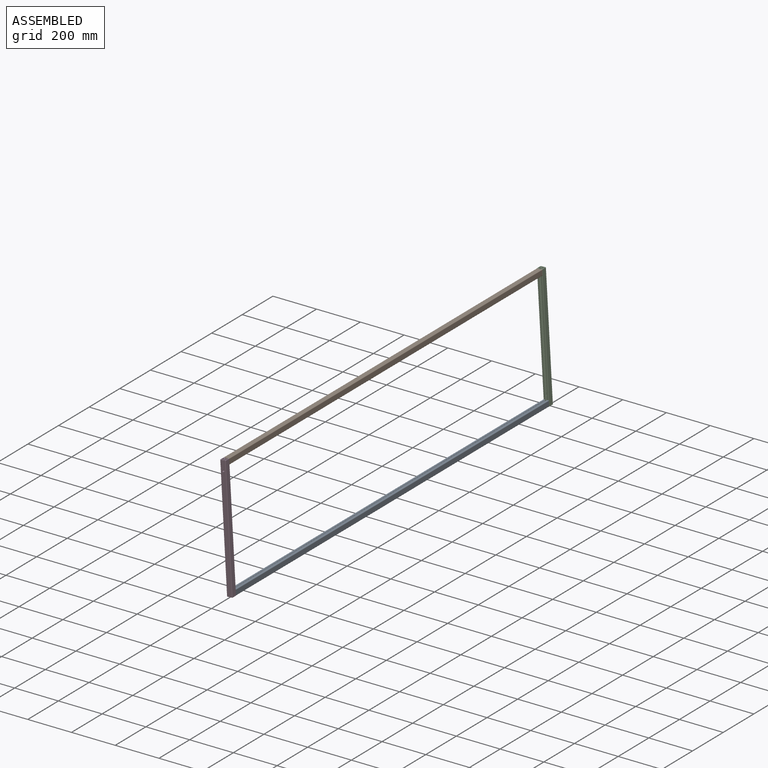
[diagram: assembled view]
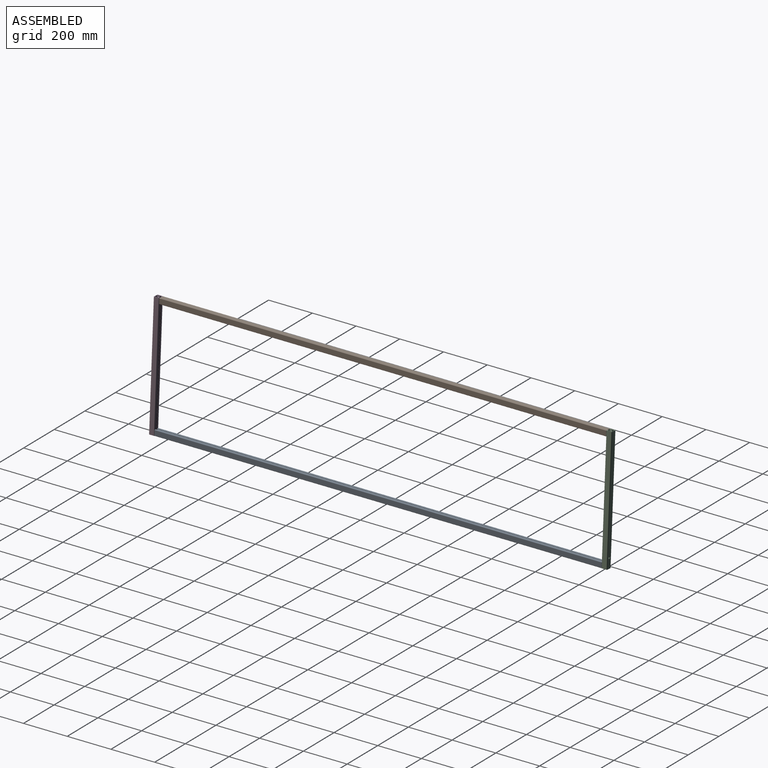
[diagram: assembled view, second angle]
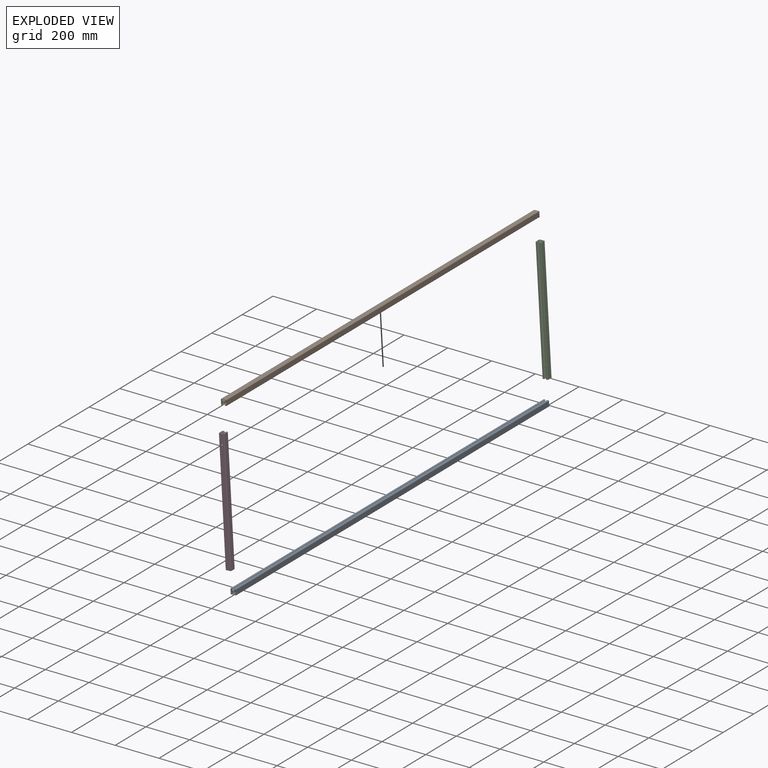
[diagram: exploded view]
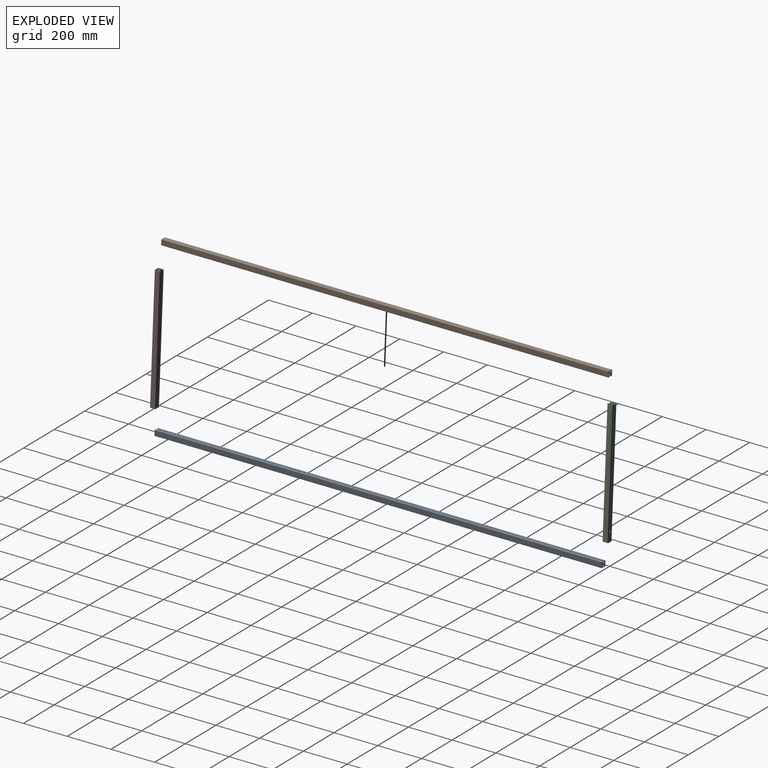
[diagram: exploded view, second angle]
ASSEMBLY  parts=4 mates=3
PART A: 65 faces, bbox 25x2044.7x25 mm
  f0: plane 2044.7x3.11mm, normal (0,0,-1), area 6359mm2, adj f1,f62,f63,f64
  f1: cylinder r=3.17mm len=2044.7mm, axis (0,1,0), area 5086.7mm2, adj f0,f2,f63,f64
  f2: plane 2044.7x3.34mm, normal (-0.71,0,-0.71), area 9646.1mm2, adj f1,f3,f63,f64
  f3: cylinder r=1.01mm len=2044.7mm, axis (0,1,0), area 4866.8mm2, adj f2,f4,f63,f64
  f4: plane 2044.7x2.1mm, normal (0,0,1), area 4293.9mm2, adj f3,f5,f63,f64
  f5: plane 2044.7x8.64mm, normal (0,0,1), area 17666.2mm2, adj f4,f6,f63,f64
  f6: plane 2044.7x2.1mm, normal (0,0,1), area 4293.9mm2, adj f5,f7,f63,f64
  f7: cylinder r=1.01mm len=2044.7mm, axis (0,1,0), area 4866.8mm2, adj f6,f8,f63,f64
  f8: plane 2044.7x3.34mm, normal (0.71,0,-0.71), area 9646.1mm2, adj f7,f62,f63,f64
  f9: plane 2044.7x1.56mm, normal (1,0,0), area 3179.6mm2, adj f10,f59,f63,f64
  f10: plane 2044.7x1.56mm, normal (1,0,0), area 3179.6mm2, adj f9,f11,f63,f64
  f11: cylinder r=3.17mm len=2044.7mm, axis (0,1,0), area 5086.7mm2, adj f10,f12,f63,f64
  f12: plane 2044.7x3.34mm, normal (0.71,0,-0.71), area 9646.1mm2, adj f11,f13,f63,f64
  f13: cylinder r=1.01mm len=2044.7mm, axis (0,1,0), area 4866.8mm2, adj f12,f14,f63,f64
  f14: plane 2044.7x2.1mm, normal (-1,0,0), area 4293.9mm2, adj f13,f15,f63,f64
  f15: plane 2044.7x8.64mm, normal (-1,0,0), area 17666.5mm2, adj f14,f16,f63,f64
  f16: plane 2044.7x2.1mm, normal (-1,0,0), area 4293.9mm2, adj f15,f17,f63,f64
  f17: cylinder r=1.01mm len=2044.7mm, axis (0,1,0), area 4866.8mm2, adj f16,f18,f63,f64
  f18: plane 2044.7x3.34mm, normal (0.71,0,0.71), area 9646.1mm2, adj f17,f59,f63,f64
  f19: cylinder r=1.01mm len=2044.7mm, axis (0,1,0), area 4866.8mm2, adj f20,f60,f63,f64
  f20: plane 2044.7x2.1mm, normal (0,0,-1), area 4293.9mm2, adj f19,f21,f63,f64
  f21: cylinder r=1.07mm len=2044.7mm, axis (0,1,0), area 6871.6mm2, adj f20,f22,f63,f64
  f22: plane 2044.7x6.22mm, normal (0,0,1), area 12712mm2, adj f21,f23,f63,f64
  f23: cylinder r=1.96mm len=2044.7mm, axis (0,1,0), area 3149.2mm2, adj f22,f24,f63,f64
  f24: cylinder r=1.96mm len=2044.7mm, axis (0,1,0), area 3149.2mm2, adj f23,f25,f63,f64
  f25: plane 2044.7x6.22mm, normal (-1,0,0), area 12712mm2, adj f24,f26,f63,f64
  f26: plane 2044.7x8.64mm, normal (-1,0,0), area 17666.5mm2, adj f25,f27,f63,f64
  f27: plane 2044.7x6.22mm, normal (-1,0,0), area 12712mm2, adj f26,f28,f63,f64
  f28: cylinder r=1.96mm len=2044.7mm, axis (0,1,0), area 3149.2mm2, adj f27,f29,f63,f64
  f29: cylinder r=1.96mm len=2044.7mm, axis (0,1,0), area 3149.2mm2, adj f28,f30,f63,f64
  f30: plane 2044.7x6.22mm, normal (0,0,-1), area 12712mm2, adj f29,f31,f63,f64
  f31: plane 2044.7x8.64mm, normal (0,0,-1), area 17666.2mm2, adj f30,f32,f63,f64
  f32: plane 2044.7x6.22mm, normal (0,0,-1), area 12712mm2, adj f31,f33,f63,f64
  f33: cylinder r=1.96mm len=2044.7mm, axis (0,1,0), area 3149.2mm2, adj f32,f34,f63,f64
  f34: cylinder r=1.96mm len=2044.7mm, axis (0,1,0), area 3149.2mm2, adj f33,f35,f63,f64
  f35: plane 2044.7x6.22mm, normal (1,0,0), area 12712mm2, adj f34,f36,f63,f64
  f36: plane 2044.7x8.64mm, normal (1,0,0), area 17666.5mm2, adj f35,f37,f63,f64
  f37: plane 2044.7x6.22mm, normal (1,0,0), area 12712mm2, adj f36,f38,f63,f64
  f38: cylinder r=1.96mm len=2044.7mm, axis (0,1,0), area 3149.2mm2, adj f37,f39,f63,f64
  f39: cylinder r=1.96mm len=2044.7mm, axis (0,1,0), area 3149.2mm2, adj f38,f40,f63,f64
  f40: plane 2044.7x6.22mm, normal (0,0,1), area 12712mm2, adj f39,f41,f63,f64
  f41: cylinder r=1.07mm len=2044.7mm, axis (0,1,0), area 6868.6mm2, adj f40,f42,f63,f64
  f42: plane 2044.7x2.1mm, normal (0,0,-1), area 4293.9mm2, adj f41,f43,f63,f64
  f43: cylinder r=1.01mm len=2044.7mm, axis (0,1,0), area 4866.8mm2, adj f42,f44,f63,f64
  f44: plane 2044.7x3.34mm, normal (-0.71,0,0.71), area 9646.1mm2, adj f43,f45,f63,f64
  f45: cylinder r=3.17mm len=2044.7mm, axis (0,1,0), area 5086.7mm2, adj f44,f46,f63,f64
  f46: plane 2044.7x3.11mm, normal (0,0,1), area 6359mm2, adj f45,f47,f63,f64
  f47: cylinder r=3.17mm len=2044.7mm, axis (0,1,0), area 5086.7mm2, adj f46,f60,f63,f64
  f48: plane 2044.7x1.56mm, normal (-1,0,0), area 3179.6mm2, adj f49,f61,f63,f64
  f49: plane 2044.7x1.56mm, normal (-1,0,0), area 3179.6mm2, adj f48,f50,f63,f64
  f50: cylinder r=3.17mm len=2044.7mm, axis (0,1,0), area 5086.7mm2, adj f49,f51,f63,f64
  f51: plane 2044.7x3.34mm, normal (-0.71,0,0.71), area 9646.1mm2, adj f50,f52,f63,f64
  f52: cylinder r=1.01mm len=2044.7mm, axis (0,1,0), area 4866.8mm2, adj f51,f53,f63,f64
  f53: plane 2044.7x2.1mm, normal (1,0,0), area 4293.9mm2, adj f52,f54,f63,f64
  f54: plane 2044.7x8.64mm, normal (1,0,0), area 17666.5mm2, adj f53,f55,f63,f64
  f55: plane 2044.7x2.1mm, normal (1,0,0), area 4293.9mm2, adj f54,f56,f63,f64
  f56: cylinder r=1.01mm len=2044.7mm, axis (0,1,0), area 4866.8mm2, adj f55,f57,f63,f64
  f57: plane 2044.7x3.34mm, normal (-0.71,0,-0.71), area 9646.1mm2, adj f56,f61,f63,f64
  f58: cylinder r=2.5mm len=2044.7mm, axis (0,1,0), area 32118.1mm2, adj f63,f64
  f59: cylinder r=3.17mm len=2044.7mm, axis (0,1,0), area 5086.7mm2, adj f9,f18,f63,f64
  f60: plane 2044.7x3.34mm, normal (0.71,0,0.71), area 9646.1mm2, adj f19,f47,f63,f64
  f61: cylinder r=3.17mm len=2044.7mm, axis (0,1,0), area 5086.7mm2, adj f48,f57,f63,f64
  f62: cylinder r=3.17mm len=2044.7mm, axis (0,1,0), area 5086.7mm2, adj f0,f8,f63,f64
  f63: plane 25x25mm, normal (0,-1,0), area 318mm2, adj f0,f1,f2,f3,f4,f5,f6,f7
  f64: plane 25x25mm, normal (0,1,0), area 318mm2, adj f0,f1,f2,f3,f4,f5,f6,f7
PART B: same geometry as A
PART C: 92 faces, bbox 25x558.8x25 mm
  f0: cylinder r=3.17mm len=38.59mm, axis (0,1,0), area 94.8mm2, adj f1,f2,f80,f91
  f1: plane 37.61x3.13mm, normal (0,0,-1), area 116.6mm2, adj f0,f4,f80,f91
  f2: plane 558.81x3.35mm, normal (-0.71,0,-0.71), area 2601.1mm2, adj f0,f23,f24,f80,f81,f90,f91
  f3: plane 558.81x3.35mm, normal (0.71,0,-0.71), area 2601.1mm2, adj f4,f22,f28,f80,f81,f90,f91
  f4: cylinder r=3.17mm len=38.59mm, axis (0,1,0), area 94.8mm2, adj f1,f3,f80,f91
  f5: cylinder r=6.6mm len=13.21mm, axis (0,0,-1), area 125.8mm2, adj f10,f11,f12,f15,f16,f17,f18,f19
  f6: plane 507.51x3.12mm, normal (0,0,-1), area 1577.9mm2, adj f22,f23,f81,f90
  f7: plane 512.39x2.11mm, normal (0,0,1), area 1072mm2, adj f8,f24,f81,f90
  f8: plane 509.22x8.65mm, normal (0,0,1), area 4390.3mm2, adj f7,f9,f81,f90
  f9: plane 512.39x2.11mm, normal (0,0,1), area 1072mm2, adj f8,f28,f81,f90
  f10: plane 39.5x1.56mm, normal (1,0,0), area 61.4mm2, adj f5,f30,f77,f80
  f11: plane 509.4x1.56mm, normal (1,0,0), area 792.1mm2, adj f5,f29,f31,f81
  f12: cylinder r=3.17mm len=40.51mm, axis (0,1,0), area 99.5mm2, adj f5,f30,f32,f80
  f13: plane 558.8x13.26mm, normal (0,0,-1), area 4810.4mm2, adj f14,f50,f80,f81,f85
  f14: plane 558.8x6.25mm, normal (0,0,-1), area 3458.3mm2, adj f13,f51,f80,f81
  f15: plane 507.93x3.11mm, normal (0,0,1), area 1579.3mm2, adj f5,f63,f65,f81
  f16: plane 509.4x1.56mm, normal (-1,0,0), area 792.1mm2, adj f5,f21,f67,f81
  f17: plane 39.5x1.56mm, normal (-1,0,0), area 61.4mm2, adj f5,f18,f66,f80
  f18: cylinder r=3.17mm len=39.79mm, axis (0,1,0), area 98.1mm2, adj f5,f17,f69,f80,f84,f86,f87
  f19: cylinder r=2.5mm len=37.85mm, axis (0,1,0), area 594.5mm2, adj f5,f80
  f20: cylinder r=3.17mm len=509.69mm, axis (0,1,0), area 1267.2mm2, adj f5,f29,f38,f81,f87,f89
  f21: cylinder r=3.17mm len=510.41mm, axis (0,1,0), area 1268.5mm2, adj f5,f16,f75,f81
  f22: cylinder r=3.17mm len=508.49mm, axis (0,1,0), area 1263.8mm2, adj f3,f6,f81,f90
  f23: cylinder r=3.17mm len=508.49mm, axis (0,1,0), area 1263.8mm2, adj f2,f6,f81,f90
  f24: cylinder r=1.01mm len=558.8mm, axis (0,1,0), area 1329.3mm2, adj f2,f7,f25,f80,f81,f90
  f25: plane 42.49x2.11mm, normal (0,0,1), area 85.2mm2, adj f24,f26,f80,f90
  f26: plane 39.33x8.66mm, normal (0,0,1), area 330.3mm2, adj f25,f27,f80,f90,f91
  f27: plane 42.49x2.11mm, normal (0,0,1), area 85.2mm2, adj f26,f28,f80,f90
  f28: cylinder r=1.01mm len=558.8mm, axis (0,1,0), area 1329.3mm2, adj f3,f9,f27,f80,f81,f90
  f29: plane 509.4x1.56mm, normal (1,0,0), area 792.1mm2, adj f5,f11,f20,f81
  f30: plane 39.5x1.56mm, normal (1,0,0), area 61.4mm2, adj f5,f10,f12,f80
  f31: cylinder r=3.17mm len=510.41mm, axis (0,1,0), area 1268.5mm2, adj f5,f11,f32,f81
  f32: plane 558.8x3.34mm, normal (0.71,0,-0.71), area 2626.3mm2, adj f5,f12,f31,f33,f80,f81
  f33: cylinder r=1.01mm len=558.8mm, axis (0,1,0), area 1330mm2, adj f32,f34,f80,f81
  f34: plane 558.8x2.1mm, normal (-1,0,0), area 1173.5mm2, adj f33,f35,f80,f81
  f35: plane 558.8x8.64mm, normal (-1,0,0), area 4828.1mm2, adj f34,f36,f80,f81
  f36: plane 558.8x2.1mm, normal (-1,0,0), area 1173.5mm2, adj f35,f37,f80,f81
  f37: cylinder r=1.01mm len=558.8mm, axis (0,1,0), area 1330mm2, adj f36,f38,f80,f81
  f38: plane 558.8x3.34mm, normal (0.71,0,0.71), area 2621.1mm2, adj f20,f37,f77,f80,f81,f89
  f39: cylinder r=1.01mm len=558.8mm, axis (0,1,0), area 1330mm2, adj f40,f78,f80,f81
  f40: plane 558.8x2.1mm, normal (0,0,-1), area 1173.5mm2, adj f39,f41,f80,f81
  f41: cylinder r=1.07mm len=558.8mm, axis (0,1,0), area 1877.9mm2, adj f40,f42,f80,f81
  f42: plane 558.8x6.22mm, normal (0,0,1), area 3474.1mm2, adj f41,f43,f80,f81
  f43: cylinder r=1.96mm len=558.8mm, axis (0,1,0), area 860.6mm2, adj f42,f44,f80,f81
  f44: cylinder r=1.96mm len=558.8mm, axis (0,1,0), area 860.6mm2, adj f43,f45,f80,f81
  f45: plane 558.8x6.22mm, normal (-1,0,0), area 3474.1mm2, adj f44,f46,f80,f81
  f46: plane 558.8x8.64mm, normal (-1,0,0), area 4828.1mm2, adj f45,f47,f80,f81
  f47: plane 558.8x6.22mm, normal (-1,0,0), area 3474.1mm2, adj f46,f48,f80,f81
  f48: cylinder r=1.96mm len=558.8mm, axis (0,1,0), area 860.6mm2, adj f47,f49,f80,f81
  f49: cylinder r=1.96mm len=558.8mm, axis (0,1,0), area 860.6mm2, adj f48,f50,f80,f81
  f50: plane 558.8x6.25mm, normal (0,0,-1), area 3458.3mm2, adj f13,f49,f80,f81
  f51: cylinder r=1.96mm len=558.8mm, axis (0,1,0), area 860.6mm2, adj f14,f52,f80,f81
  f52: cylinder r=1.96mm len=558.8mm, axis (0,1,0), area 860.6mm2, adj f51,f53,f80,f81
  f53: plane 558.8x6.22mm, normal (1,0,0), area 3474.1mm2, adj f52,f54,f80,f81
  f54: plane 558.8x8.64mm, normal (1,0,0), area 4828.1mm2, adj f53,f55,f80,f81
  f55: plane 558.8x6.22mm, normal (1,0,0), area 3474.1mm2, adj f54,f56,f80,f81
  f56: cylinder r=1.96mm len=558.8mm, axis (0,1,0), area 860.6mm2, adj f55,f57,f80,f81
  f57: cylinder r=1.96mm len=558.8mm, axis (0,1,0), area 860.6mm2, adj f56,f58,f80,f81
  f58: plane 558.8x6.22mm, normal (0,0,1), area 3474.1mm2, adj f57,f59,f80,f81
  f59: cylinder r=1.07mm len=558.8mm, axis (0,1,0), area 1877.1mm2, adj f58,f60,f80,f81
  f60: plane 558.8x2.1mm, normal (0,0,-1), area 1173.5mm2, adj f59,f61,f80,f81
  f61: cylinder r=1.01mm len=558.8mm, axis (0,1,0), area 1330mm2, adj f60,f62,f80,f81
  f62: plane 558.8x3.34mm, normal (-0.71,0,0.71), area 2636.2mm2, adj f61,f63,f80,f81
  f63: cylinder r=3.17mm len=558.8mm, axis (0,1,0), area 1361.1mm2, adj f5,f15,f62,f64,f80,f81,f83
  f64: plane 38.03x3.11mm, normal (0,0,1), area 117.9mm2, adj f5,f63,f65,f80
  f65: cylinder r=3.17mm len=558.8mm, axis (0,1,0), area 1361.1mm2, adj f5,f15,f64,f78,f80,f81,f82
  f66: plane 39.5x1.56mm, normal (-1,0,0), area 61.4mm2, adj f5,f17,f79,f80
  f67: plane 509.4x1.56mm, normal (-1,0,0), area 792.1mm2, adj f5,f16,f68,f81
  f68: cylinder r=3.17mm len=509.69mm, axis (0,1,0), area 1267.2mm2, adj f5,f67,f69,f81,f84,f87
  f69: plane 558.8x3.34mm, normal (-0.71,0,0.71), area 2621.1mm2, adj f18,f68,f70,f80,f81,f84
  f70: cylinder r=1.01mm len=558.8mm, axis (0,1,0), area 1330mm2, adj f69,f71,f80,f81
  f71: plane 558.8x2.1mm, normal (1,0,0), area 1173.5mm2, adj f70,f72,f80,f81
  f72: plane 558.8x8.64mm, normal (1,0,0), area 4828.1mm2, adj f71,f73,f80,f81
  f73: plane 558.8x2.1mm, normal (1,0,0), area 1173.5mm2, adj f72,f74,f80,f81
  f74: cylinder r=1.01mm len=558.8mm, axis (0,1,0), area 1330mm2, adj f73,f75,f80,f81
  f75: plane 558.8x3.34mm, normal (-0.71,0,-0.71), area 2626.3mm2, adj f5,f21,f74,f79,f80,f81
  f76: cylinder r=2.5mm len=507.75mm, axis (0,1,0), area 7975.7mm2, adj f5,f81
  f77: cylinder r=3.17mm len=39.79mm, axis (0,1,0), area 98.1mm2, adj f5,f10,f38,f80,f87,f88,f89
  f78: plane 558.8x3.34mm, normal (0.71,0,0.71), area 2636.2mm2, adj f39,f65,f80,f81
  f79: cylinder r=3.17mm len=40.51mm, axis (0,1,0), area 99.5mm2, adj f5,f66,f75,f80
  f80: plane 25x25mm, normal (0,-1,0), area 318mm2, adj f0,f1,f2,f3,f4,f10,f12,f13
  f81: plane 25x25mm, normal (0,1,0), area 318mm2, adj f2,f3,f6,f7,f8,f9,f11,f13
  f82: plane 10.84x2.83mm, normal (0,0,-1), area 21.5mm2, adj f5,f65
  f83: plane 10.84x2.83mm, normal (0,0,-1), area 21.5mm2, adj f5,f63
  f84: bspline ~11.9x11.78mm, area 25.1mm2, adj f18,f68,f69,f86,f87
  f85: cone r=3.96mm half-angle=3deg, axis (0,0,-1), area 230.8mm2, adj f13,f87
  f86: bspline ~11.9x0.67mm, area 0mm2, adj f18,f84,f87
  f87: plane 14.25x13.21mm, normal (0,0,1), area 111.8mm2, adj f5,f18,f20,f68,f77,f84,f85,f86
  f88: bspline ~11.9x0.67mm, area 0mm2, adj f77,f87,f89
  f89: bspline ~12x11.9mm, area 25.1mm2, adj f20,f38,f77,f87,f88
  f90: bspline ~14.47x12.91mm, area 121.3mm2, adj f2,f3,f6,f7,f8,f9,f22,f23
  f91: bspline ~11.9x9.41mm, area 52.8mm2, adj f0,f1,f2,f3,f4,f26,f90
PART D: same geometry as C
PLACE A rot(axis=(0,-1,0),3.2deg) t=(58.1,0,26.87)mm
PLACE B rot(axis=(0,1,0),176.7deg) t=(-66.36,0,670.8)mm
PLACE C rot(axis=(1,-0.03,0.03),90deg) t=(15.46,24.58,629.84)mm
PLACE D rot(axis=(-1,-0.03,-0.03),90deg) t=(47.37,-2069.28,71.9)mm
MATE fastened D.f81 <-> A.f30  axis (0.06,0,-1) through (1.33,-2044.7,69.33)mm
MATE fastened C.f81 <-> B.f30  axis (-0.06,0,1) through (-9.53,0,628.41)mm
MATE fastened A.f32 <-> C.f80  axis (0.06,0,-1) through (22.37,0,70.52)mm
